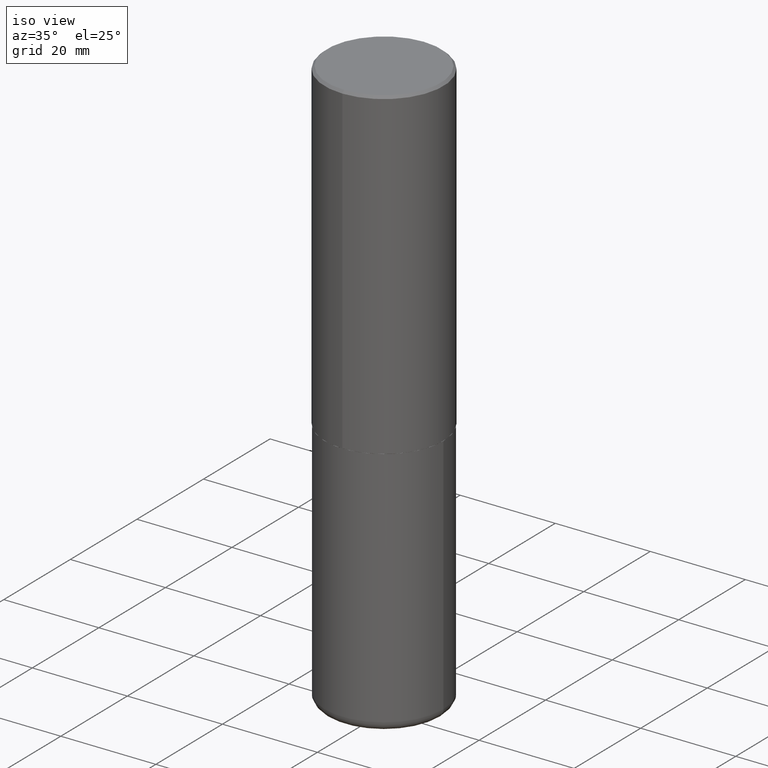
[diagram: clean part render]
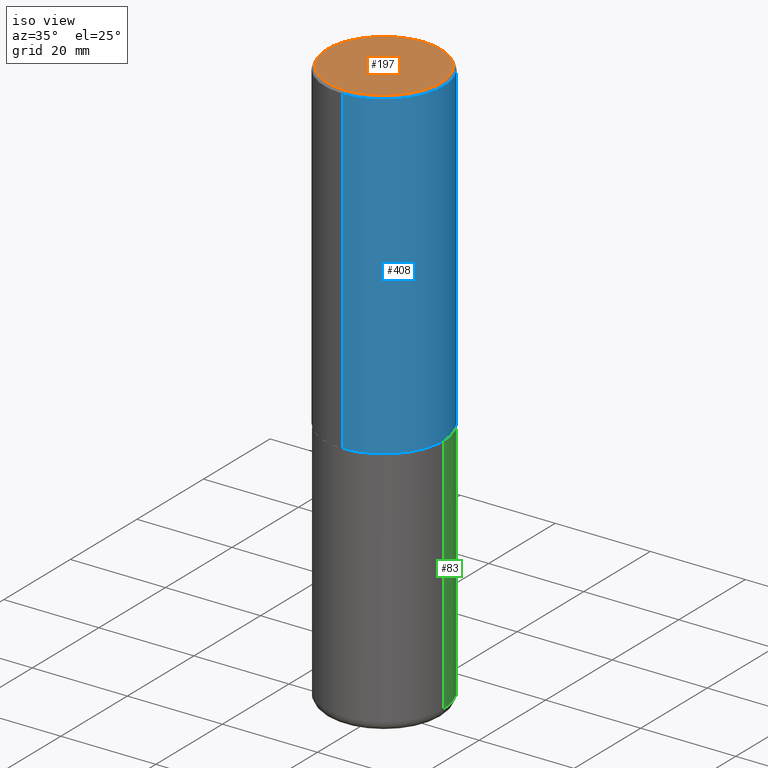
[diagram: same view with three faces highlighted in distinct colors, each labeled with its STEP entity id]
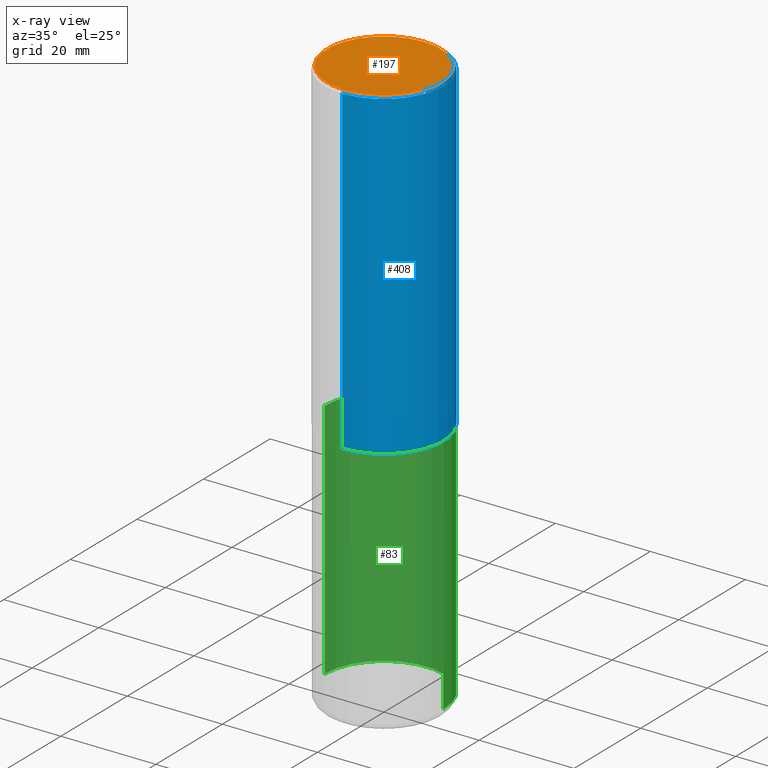
[diagram: x-ray of the same camera — body ghosted, the three highlighted faces saturated]
A machine part, iso view with three faces highlighted in distinct colors.
The next image is the same camera in x-ray (body ghosted, the three faces saturated) — at least one of them is partly hidden behind the body in this view.
Their STEP definitions:

[orange] entity #197 — the highlighted planar face has unit normal (0, -0, -1).
#29 = DIRECTION ( 'NONE',  ( 6.982962677686265922E-15, 1.000000000000000000, -3.489119658767506053E-15 ) ) ;
#61 = CARTESIAN_POINT ( 'NONE',  ( 3.366835455046432084E-15, 0.4721499999999996255, -1.422271752159468089E-15 ) ) ;
#66 = PLANE ( 'NONE',  #191 ) ;
#68 = CARTESIAN_POINT ( 'NONE',  ( -5.508856381705404921E-45, 7.854569916190676353E-31, 2.251160947276086573E-16 ) ) ;
#73 = CARTESIAN_POINT ( 'NONE',  ( -3.307789109625541747E-15, -0.4721499999999996255, 1.872503941614685503E-15 ) ) ;
#98 = FACE_OUTER_BOUND ( 'NONE', #222, .T. ) ;
#114 = EDGE_CURVE ( 'NONE', #143, #404, #260, .T. ) ;
#143 = VERTEX_POINT ( 'NONE', #61 ) ;
#149 = AXIS2_PLACEMENT_3D ( 'NONE', #68, #393, #229 ) ;
#157 = CIRCLE ( 'NONE', #149, 0.4721499999999996255 ) ;
#160 = DIRECTION ( 'NONE',  ( -6.982962677686265922E-15, -1.000000000000000000, 3.489119658767506053E-15 ) ) ;
#191 = AXIS2_PLACEMENT_3D ( 'NONE', #194, #256, #29 ) ;
#194 = CARTESIAN_POINT ( 'NONE',  ( 3.297005828269567997E-15, 0.4721499999999996255, -1.534829799523272196E-15 ) ) ;
#197 = ADVANCED_FACE ( 'NONE', ( #98 ), #66, .F. ) ;
#200 = ORIENTED_EDGE ( 'NONE', *, *, #114, .T. ) ;
#214 = CARTESIAN_POINT ( 'NONE',  ( -5.508856381705404921E-45, 7.854569916190676353E-31, 2.251160947276086573E-16 ) ) ;
#222 = EDGE_LOOP ( 'NONE', ( #200, #241 ) ) ;
#227 = EDGE_CURVE ( 'NONE', #404, #143, #157, .T. ) ;
#229 = DIRECTION ( 'NONE',  ( -6.982962677686265922E-15, -1.000000000000000000, 3.489119658767506053E-15 ) ) ;
#241 = ORIENTED_EDGE ( 'NONE', *, *, #227, .T. ) ;
#256 = DIRECTION ( 'NONE',  ( 2.447117958567618897E-29, -3.489119658767506053E-15, -1.000000000000000000 ) ) ;
#260 = CIRCLE ( 'NONE', #302, 0.4721499999999996255 ) ;
#302 = AXIS2_PLACEMENT_3D ( 'NONE', #214, #344, #160 ) ;
#344 = DIRECTION ( 'NONE',  ( -2.447117958567619178E-29, 3.489119658767506053E-15, 1.000000000000000000 ) ) ;
#393 = DIRECTION ( 'NONE',  ( -2.447117958567619178E-29, 3.489119658767506053E-15, 1.000000000000000000 ) ) ;
#404 = VERTEX_POINT ( 'NONE', #73 ) ;

[blue] entity #408 — the highlighted cylindrical surface (partial cylindrical patch) has radius 12.5006 mm, axis along (-0, 0, 1).
#1 = LINE ( 'NONE', #129, #92 ) ;
#4 = VECTOR ( 'NONE', #287, 39.37007874015748143 ) ;
#11 = DIRECTION ( 'NONE',  ( -6.982962677686265922E-15, -1.000000000000000000, 3.489119658767506053E-15 ) ) ;
#19 = DIRECTION ( 'NONE',  ( -6.982962677686265922E-15, -1.000000000000000000, 3.486624039460257331E-15 ) ) ;
#53 = EDGE_CURVE ( 'NONE', #204, #135, #412, .T. ) ;
#54 = CIRCLE ( 'NONE', #169, 0.4921500000000002539 ) ;
#63 = EDGE_CURVE ( 'NONE', #135, #138, #97, .T. ) ;
#92 = VECTOR ( 'NONE', #165, 39.37007874015748143 ) ;
#93 = AXIS2_PLACEMENT_3D ( 'NONE', #367, #400, #11 ) ;
#97 = CIRCLE ( 'NONE', #126, 0.4921499999999999209 ) ;
#107 = ORIENTED_EDGE ( 'NONE', *, *, #53, .F. ) ;
#109 = ORIENTED_EDGE ( 'NONE', *, *, #63, .F. ) ;
#126 = AXIS2_PLACEMENT_3D ( 'NONE', #277, #182, #19 ) ;
#127 = EDGE_CURVE ( 'NONE', #204, #174, #54, .T. ) ;
#129 = CARTESIAN_POINT ( 'NONE',  ( 3.496936074043333291E-15, 0.4921500000000000874, -1.717170240062428491E-15 ) ) ;
#135 = VERTEX_POINT ( 'NONE', #258 ) ;
#138 = VERTEX_POINT ( 'NONE', #225 ) ;
#165 = DIRECTION ( 'NONE',  ( -2.447117958567619178E-29, 3.489119658767506053E-15, 1.000000000000000000 ) ) ;
#167 = EDGE_CURVE ( 'NONE', #174, #138, #1, .T. ) ;
#169 = AXIS2_PLACEMENT_3D ( 'NONE', #187, #311, #381 ) ;
#174 = VERTEX_POINT ( 'NONE', #354 ) ;
#179 = ORIENTED_EDGE ( 'NONE', *, *, #127, .T. ) ;
#182 = DIRECTION ( 'NONE',  ( -2.447117958567619178E-29, 3.489119658767506053E-15, 1.000000000000000000 ) ) ;
#187 = CARTESIAN_POINT ( 'NONE',  ( 6.548977080718662055E-29, -9.337582030793598206E-15, -2.676199999999999690 ) ) ;
#204 = VERTEX_POINT ( 'NONE', #254 ) ;
#220 = CARTESIAN_POINT ( 'NONE',  ( -3.436665081823296565E-15, -0.4921500000000000874, 1.717170240062428491E-15 ) ) ;
#225 = CARTESIAN_POINT ( 'NONE',  ( 3.436665081823295777E-15, 0.4921499999999998098, -0.02000000000000182188 ) ) ;
#231 = CYLINDRICAL_SURFACE ( 'NONE', #93, 0.4921500000000000874 ) ;
#234 = FACE_OUTER_BOUND ( 'NONE', #401, .T. ) ;
#237 = ORIENTED_EDGE ( 'NONE', *, *, #167, .T. ) ;
#254 = CARTESIAN_POINT ( 'NONE',  ( -3.436665081823232273E-15, -0.4921500000000095798, -2.676199999999997914 ) ) ;
#258 = CARTESIAN_POINT ( 'NONE',  ( -3.376394089603257868E-15, -0.4921499999999999764, -0.01999999999999839059 ) ) ;
#277 = CARTESIAN_POINT ( 'NONE',  ( 4.894235917135264524E-31, -6.978239317535049922E-17, -0.02000000000000010797 ) ) ;
#287 = DIRECTION ( 'NONE',  ( -2.447117958567619178E-29, 3.489119658767506053E-15, 1.000000000000000000 ) ) ;
#311 = DIRECTION ( 'NONE',  ( -2.447117958567619178E-29, 3.489119658767506053E-15, 1.000000000000000000 ) ) ;
#354 = CARTESIAN_POINT ( 'NONE',  ( 3.496936074043367212E-15, 0.4921499999999909281, -2.676200000000001467 ) ) ;
#367 = CARTESIAN_POINT ( 'NONE',  ( 0.000000000000000000, 0.000000000000000000, 0.000000000000000000 ) ) ;
#381 = DIRECTION ( 'NONE',  ( -6.982962677686266711E-15, -1.000000000000000000, 3.330506545156064285E-15 ) ) ;
#400 = DIRECTION ( 'NONE',  ( -2.447117958567619178E-29, 3.489119658767506053E-15, 1.000000000000000000 ) ) ;
#401 = EDGE_LOOP ( 'NONE', ( #179, #237, #109, #107 ) ) ;
#408 = ADVANCED_FACE ( 'NONE', ( #234 ), #231, .T. ) ;
#412 = LINE ( 'NONE', #220, #4 ) ;

[green] entity #83 — the highlighted cylindrical surface (partial cylindrical patch) has radius 12.5006 mm, axis along (-0, 0, 1).
#3 = DIRECTION ( 'NONE',  ( -2.445468806185136597E-29, 3.491481338843145583E-15, 1.000000000000000000 ) ) ;
#5 = ORIENTED_EDGE ( 'NONE', *, *, #20, .T. ) ;
#20 = EDGE_CURVE ( 'NONE', #264, #209, #329, .T. ) ;
#59 = FACE_OUTER_BOUND ( 'NONE', #384, .T. ) ;
#83 = ADVANCED_FACE ( 'NONE', ( #59 ), #409, .T. ) ;
#85 = CARTESIAN_POINT ( 'NONE',  ( 0.000000000000000000, 0.000000000000000000, 0.000000000000000000 ) ) ;
#100 = CARTESIAN_POINT ( 'NONE',  ( -0.4921499999999999764, 3.496936074043332897E-15, -2.420853904668951509E-29 ) ) ;
#122 = DIRECTION ( 'NONE',  ( 1.000000000000000000, -6.982962677686265922E-15, 0.000000000000000000 ) ) ;
#133 = DIRECTION ( 'NONE',  ( 1.000000000000000000, -6.982962677686265922E-15, 0.000000000000000000 ) ) ;
#134 = DIRECTION ( 'NONE',  ( -2.445468806185136877E-29, 3.491481338843145188E-15, 1.000000000000000000 ) ) ;
#141 = AXIS2_PLACEMENT_3D ( 'NONE', #85, #283, #190 ) ;
#154 = CARTESIAN_POINT ( 'NONE',  ( 1.145726590385798145E-28, -1.635793922061402197E-14, -4.685099999999999376 ) ) ;
#172 = EDGE_CURVE ( 'NONE', #264, #331, #193, .T. ) ;
#175 = AXIS2_PLACEMENT_3D ( 'NONE', #154, #342, #122 ) ;
#190 = DIRECTION ( 'NONE',  ( 1.000000000000000000, -6.982962677686265922E-15, 4.876176775795935793E-29 ) ) ;
#193 = LINE ( 'NONE', #259, #343 ) ;
#209 = VERTEX_POINT ( 'NONE', #262 ) ;
#211 = ORIENTED_EDGE ( 'NONE', *, *, #332, .T. ) ;
#244 = VERTEX_POINT ( 'NONE', #389 ) ;
#259 = CARTESIAN_POINT ( 'NONE',  ( 0.4921499999999999764, -3.436665081823295777E-15, 2.399810400207969603E-29 ) ) ;
#262 = CARTESIAN_POINT ( 'NONE',  ( -0.4921500000000000874, -1.286100314657068829E-14, -4.685099999999999376 ) ) ;
#263 = LINE ( 'NONE', #100, #304 ) ;
#264 = VERTEX_POINT ( 'NONE', #294 ) ;
#271 = EDGE_CURVE ( 'NONE', #331, #244, #365, .T. ) ;
#274 = CARTESIAN_POINT ( 'NONE',  ( 0.4921499999999999764, -1.278405892217416209E-14, -2.677199999999999580 ) ) ;
#283 = DIRECTION ( 'NONE',  ( -2.445468806185136597E-29, 3.491481338843145583E-15, 1.000000000000000000 ) ) ;
#294 = CARTESIAN_POINT ( 'NONE',  ( 0.4921500000000000874, -1.979460430243731302E-14, -4.685099999999999376 ) ) ;
#301 = AXIS2_PLACEMENT_3D ( 'NONE', #386, #3, #133 ) ;
#304 = VECTOR ( 'NONE', #134, 39.37007874015748143 ) ;
#329 = CIRCLE ( 'NONE', #175, 0.4921499999999999764 ) ;
#331 = VERTEX_POINT ( 'NONE', #274 ) ;
#332 = EDGE_CURVE ( 'NONE', #209, #244, #263, .T. ) ;
#333 = ORIENTED_EDGE ( 'NONE', *, *, #172, .F. ) ;
#342 = DIRECTION ( 'NONE',  ( -2.445468806185136597E-29, 3.491481338843145583E-15, 1.000000000000000000 ) ) ;
#343 = VECTOR ( 'NONE', #357, 39.37007874015748143 ) ;
#357 = DIRECTION ( 'NONE',  ( -2.445468806185136877E-29, 3.491481338843145188E-15, 1.000000000000000000 ) ) ;
#364 = ORIENTED_EDGE ( 'NONE', *, *, #271, .F. ) ;
#365 = CIRCLE ( 'NONE', #301, 0.4921499999999999764 ) ;
#384 = EDGE_LOOP ( 'NONE', ( #5, #211, #364, #333 ) ) ;
#386 = CARTESIAN_POINT ( 'NONE',  ( 6.547009087918846705E-29, -9.347393840350866318E-15, -2.677199999999999580 ) ) ;
#389 = CARTESIAN_POINT ( 'NONE',  ( -0.4921499999999999764, -9.355730456439111248E-15, -2.677199999999999580 ) ) ;
#409 = CYLINDRICAL_SURFACE ( 'NONE', #141, 0.4921499999999999764 ) ;